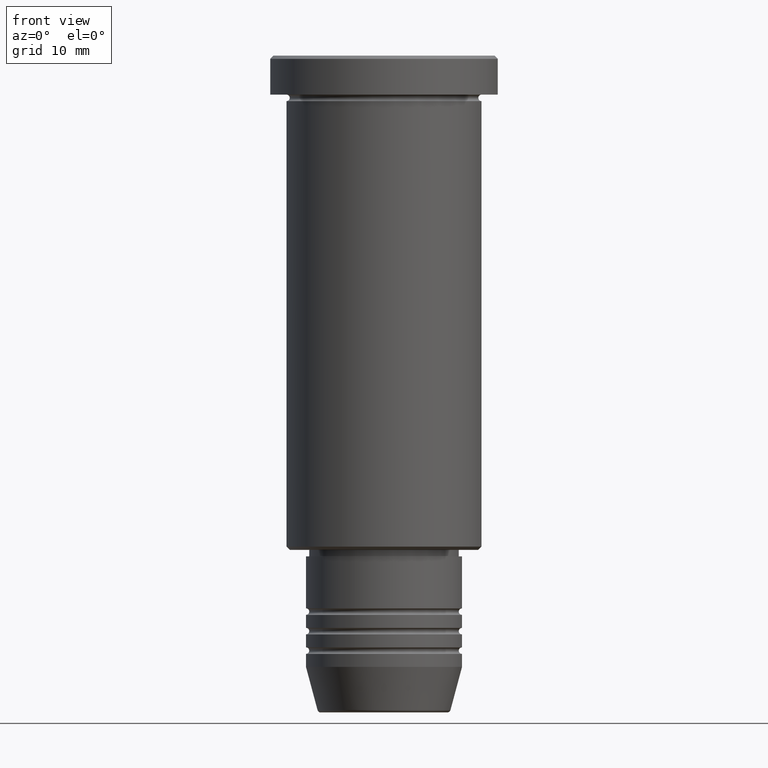
[diagram: clean part render]
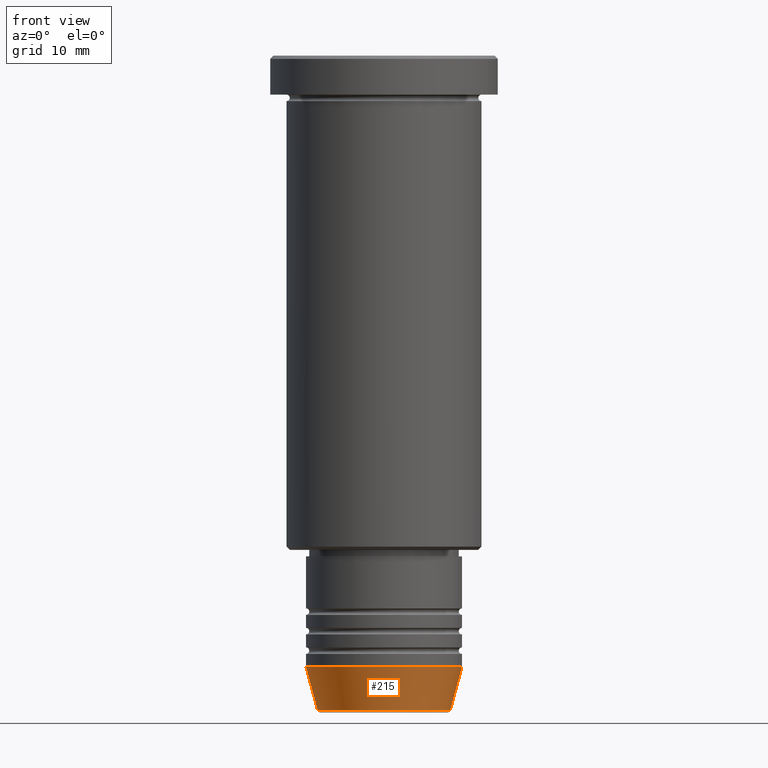
[diagram: same view with one face highlighted and labeled with its STEP entity id]
A machine part, front view. The second image highlights one B-rep face of the part: STEP entity #215.
In plain terms, the highlighted conical surface has half-angle 15 deg.
Its self-contained STEP definition (entity closure, byte-faithful):
#9 = AXIS2_PLACEMENT_3D ( 'NONE', #78, #361, #1183 ) ;
#67 = VERTEX_POINT ( 'NONE', #148 ) ;
#73 = CARTESIAN_POINT ( 'NONE',  ( 12.00000000000000000, 0.000000000000000000, -94.00000000000000000 ) ) ;
#78 = CARTESIAN_POINT ( 'NONE',  ( 0.000000000000000000, 0.000000000000000000, -94.00000000000000000 ) ) ;
#132 = EDGE_LOOP ( 'NONE', ( #575, #1151, #827, #325 ) ) ;
#148 = CARTESIAN_POINT ( 'NONE',  ( 12.00000000000000000, 0.000000000000000000, -94.00000000000000000 ) ) ;
#162 = CARTESIAN_POINT ( 'NONE',  ( -10.22365507213718949, 1.360806402472382547E-15, -100.6294095225512706 ) ) ;
#179 = DIRECTION ( 'NONE',  ( 1.000000000000000000, 0.000000000000000000, 0.000000000000000000 ) ) ;
#215 = ADVANCED_FACE ( 'NONE', ( #533 ), #493, .T. ) ;
#219 = VERTEX_POINT ( 'NONE', #631 ) ;
#253 = DIRECTION ( 'NONE',  ( -0.2588190451025213501, 3.169619151431772337E-17, 0.9659258262890680902 ) ) ;
#258 = EDGE_CURVE ( 'NONE', #219, #67, #279, .T. ) ;
#279 = CIRCLE ( 'NONE', #9, 12.00000000000000000 ) ;
#300 = CARTESIAN_POINT ( 'NONE',  ( 0.000000000000000000, 0.000000000000000000, -100.6294095225512706 ) ) ;
#310 = EDGE_CURVE ( 'NONE', #1107, #67, #545, .T. ) ;
#325 = ORIENTED_EDGE ( 'NONE', *, *, #258, .F. ) ;
#355 = CARTESIAN_POINT ( 'NONE',  ( 0.000000000000000000, 0.000000000000000000, -94.00000000000000000 ) ) ;
#361 = DIRECTION ( 'NONE',  ( -0.000000000000000000, -0.000000000000000000, 1.000000000000000000 ) ) ;
#410 = VECTOR ( 'NONE', #253, 1000.000000000000000 ) ;
#420 = EDGE_CURVE ( 'NONE', #625, #1107, #676, .T. ) ;
#479 = AXIS2_PLACEMENT_3D ( 'NONE', #300, #740, #666 ) ;
#493 = CONICAL_SURFACE ( 'NONE', #655, 12.00000000000000000, 0.2617993877991500740 ) ;
#533 = FACE_OUTER_BOUND ( 'NONE', #132, .T. ) ;
#545 = LINE ( 'NONE', #73, #999 ) ;
#575 = ORIENTED_EDGE ( 'NONE', *, *, #1014, .F. ) ;
#604 = LINE ( 'NONE', #1162, #410 ) ;
#625 = VERTEX_POINT ( 'NONE', #162 ) ;
#631 = CARTESIAN_POINT ( 'NONE',  ( -12.00000000000000000, 1.469576158976823947E-15, -94.00000000000000000 ) ) ;
#655 = AXIS2_PLACEMENT_3D ( 'NONE', #355, #903, #179 ) ;
#666 = DIRECTION ( 'NONE',  ( 1.000000000000000000, 0.000000000000000000, 0.000000000000000000 ) ) ;
#676 = CIRCLE ( 'NONE', #479, 10.22365507213718949 ) ;
#734 = CARTESIAN_POINT ( 'NONE',  ( 10.22365507213718949, 0.000000000000000000, -100.6294095225512706 ) ) ;
#740 = DIRECTION ( 'NONE',  ( -0.000000000000000000, -0.000000000000000000, 1.000000000000000000 ) ) ;
#827 = ORIENTED_EDGE ( 'NONE', *, *, #310, .T. ) ;
#903 = DIRECTION ( 'NONE',  ( -0.000000000000000000, -0.000000000000000000, 1.000000000000000000 ) ) ;
#978 = DIRECTION ( 'NONE',  ( 0.2588190451025213501, 0.000000000000000000, 0.9659258262890680902 ) ) ;
#999 = VECTOR ( 'NONE', #978, 1000.000000000000000 ) ;
#1014 = EDGE_CURVE ( 'NONE', #625, #219, #604, .T. ) ;
#1107 = VERTEX_POINT ( 'NONE', #734 ) ;
#1151 = ORIENTED_EDGE ( 'NONE', *, *, #420, .T. ) ;
#1162 = CARTESIAN_POINT ( 'NONE',  ( -12.00000000000000000, 1.469576158976823947E-15, -94.00000000000000000 ) ) ;
#1183 = DIRECTION ( 'NONE',  ( 1.000000000000000000, 0.000000000000000000, 0.000000000000000000 ) ) ;